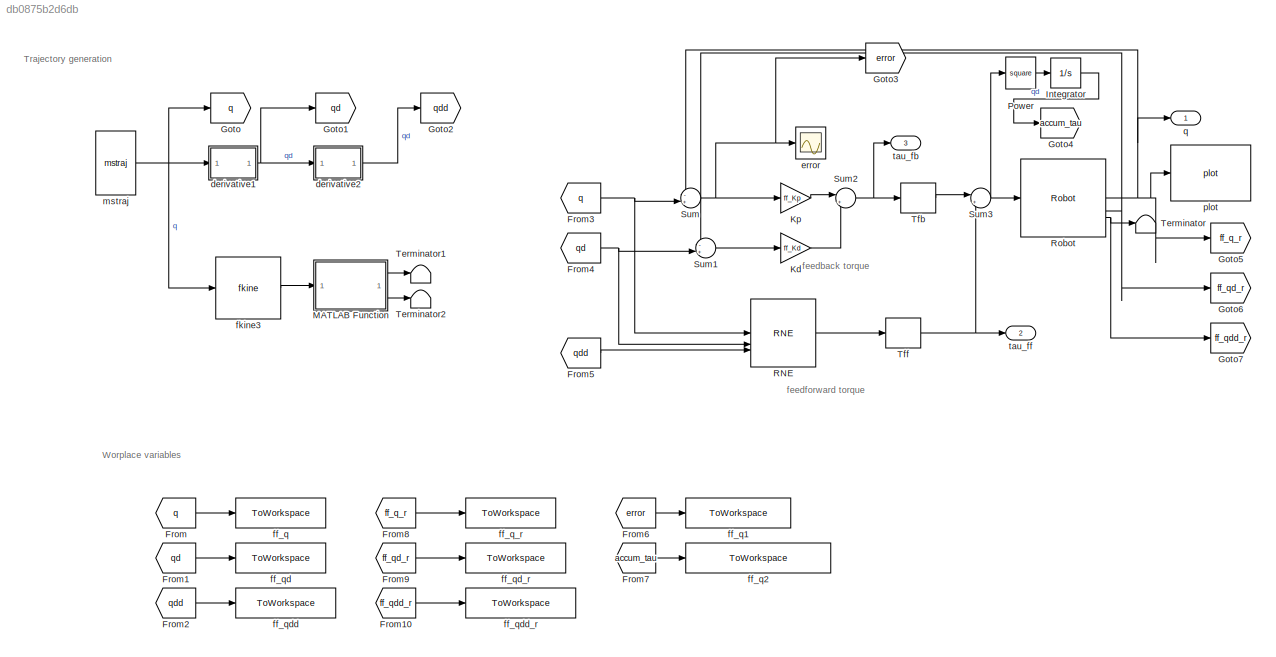
MODEL slx_db0875b2d6db
KIND model
CONFIG AbsTol = auto
CONFIG EnableMultiTasking = on
CONFIG FixedStep = auto
CONFIG MaxStep = auto
CONFIG MinStep = auto
CONFIG RelTol = 1e-3
CONFIG SampleTimeConstraint = Unconstrained
CONFIG SolverName = ode23t
CONFIG StartTime = 0.0
CONFIG StopTime = 99.7
BLOCK [From] From
  GotoTag = q
BLOCK [From] From1
  GotoTag = qd
BLOCK [From] From10
  GotoTag = ff_qdd_r
BLOCK [From] From2
  GotoTag = qdd
BLOCK [From] From3
  GotoTag = q
BLOCK [From] From4
  GotoTag = qd
BLOCK [From] From5
  GotoTag = qdd
BLOCK [From] From6
  GotoTag = error
BLOCK [From] From7
  GotoTag = accum_tau
BLOCK [From] From8
  GotoTag = ff_q_r
BLOCK [From] From9
  GotoTag = ff_qd_r
BLOCK [Goto] Goto
  GotoTag = q
BLOCK [Goto] Goto1
  GotoTag = qd
BLOCK [Goto] Goto2
  GotoTag = qdd
BLOCK [Goto] Goto3
  GotoTag = error
BLOCK [Goto] Goto4
  GotoTag = accum_tau
BLOCK [Goto] Goto5
  GotoTag = ff_q_r
BLOCK [Goto] Goto6
  GotoTag = ff_qd_r
BLOCK [Goto] Goto7
  GotoTag = ff_qdd_r
BLOCK [Integrator] Integrator
BLOCK [Gain] Kd
  Gain = ff_Kd
  OutDataTypeStr = Inherit: Same as input
  ParamDataTypeStr = Inherit: Same as input
  SaturateOnIntegerOverflow = on
BLOCK [Gain] Kp
  Gain = ff_Kp
  OutDataTypeStr = Inherit: Same as input
  ParamDataTypeStr = Inherit: Same as input
  SaturateOnIntegerOverflow = on
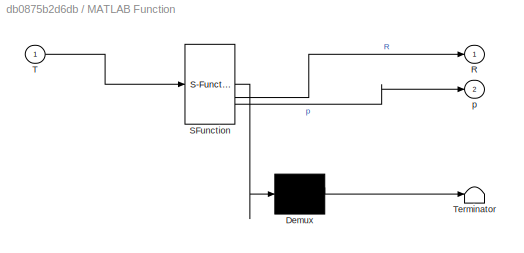
BLOCK [SubSystem] MATLAB Function
  ErrorFcn = Stateflow.Translate.translate
  LibrarySourceBlock = simulink/User-Defined\nFunctions/MATLAB Function
  PermitHierarchicalResolution = ExplicitOnly
  SFBlockType = MATLAB Function
  TreatAsAtomicUnit = on
BLOCK [Demux] MATLAB Function/ Demux 
  Outputs = 1
BLOCK [S-Function] MATLAB Function/ SFunction 
  EnableBusSupport = on
  FunctionName = sf_sfun
  PortCounts = [1 3]
  SFcnIsStateOwnerBlock = off
  SFunctionDeploymentMode = off
  Tag = Stateflow S-Function 2
BLOCK [Terminator] MATLAB Function/ Terminator 
BLOCK [Outport] MATLAB Function/R
BLOCK [Inport] MATLAB Function/T
BLOCK [Outport] MATLAB Function/p
  Port = 2
BLOCK [Math] Power
  Operator = square
BLOCK [Reference] RNE  REF=roblocks/Arm/RNE  (lib defined in mdl_2a292b13c81b, mdl_69400f8cfe22, +12 more)
  SourceBlock = roblocks/Arm/RNE
BLOCK [Reference] Robot  REF=roblocks/Arm/Robot  (lib defined in mdl_2a292b13c81b, mdl_69400f8cfe22, +12 more)
  SourceBlock = roblocks/Arm/Robot
BLOCK [Sum] Sum
  InputSameDT = on
  Inputs = -+|
  OutDataTypeStr = Inherit: Same as first input
  SaturateOnIntegerOverflow = on
BLOCK [Sum] Sum1
  InputSameDT = on
  Inputs = -+|
  OutDataTypeStr = Inherit: Same as first input
  SaturateOnIntegerOverflow = on
BLOCK [Sum] Sum2
  InputSameDT = on
  Inputs = |++
  OutDataTypeStr = Inherit: Same as first input
  SaturateOnIntegerOverflow = on
BLOCK [Sum] Sum3
  InputSameDT = on
  Inputs = |++
  OutDataTypeStr = Inherit: Same as first input
  SaturateOnIntegerOverflow = on
BLOCK [Terminator] Terminator
BLOCK [Terminator] Terminator1
BLOCK [Terminator] Terminator2
BLOCK [ZeroOrderHold] Tfb
  SampleTime = 0.002
BLOCK [ZeroOrderHold] Tff
  SampleTime = 0.05
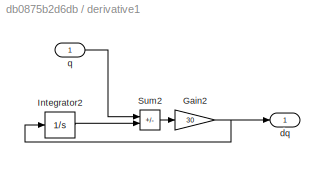
BLOCK [SubSystem] derivative1
BLOCK [Gain] derivative1/Gain2
  Gain = 30
BLOCK [Integrator] derivative1/Integrator2
BLOCK [Sum] derivative1/Sum2
  IconShape = rectangular
  Inputs = +-
BLOCK [Outport] derivative1/dq
BLOCK [Inport] derivative1/q
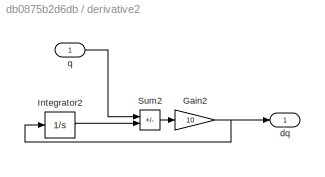
BLOCK [SubSystem] derivative2
BLOCK [Gain] derivative2/Gain2
  Gain = 10
BLOCK [Integrator] derivative2/Integrator2
BLOCK [Sum] derivative2/Sum2
  IconShape = rectangular
  Inputs = +-
BLOCK [Outport] derivative2/dq
BLOCK [Inport] derivative2/q
BLOCK [Scope] error
  Floating = off
  NumInputPorts = 1
  ScopeSpecificationString = Simulink.scopes.TimeScopeBlockCfg('CurrentConfiguration', extmgr.ConfigurationSet(extmgr.Configuration('Core','General UI',true),extmgr.Configuration('Core','Source UI',true),extmgr.Configuration('Sources','WiredSimulink',true),extmgr.Configuration('Visuals','Time Domain',true,'SerializedDisplays',{struct('MinYLimReal','-0.28455','MaxYLimReal','0.32961','YLabelReal','','MinYLimMag','0.00000','MaxY...<+1415ch>
BLOCK [ToWorkspace] ff_q
  FixptAsFi = on
  MaxDataPoints = inf
  SampleTime = -1
  SaveFormat = Structure With Time
  VariableName = ff_q
BLOCK [ToWorkspace] ff_q1
  FixptAsFi = on
  MaxDataPoints = inf
  SampleTime = -1
  SaveFormat = Structure With Time
  VariableName = ff_error
BLOCK [ToWorkspace] ff_q2
  FixptAsFi = on
  MaxDataPoints = inf
  SampleTime = -1
  SaveFormat = Structure With Time
  VariableName = ff_accum_tau
BLOCK [ToWorkspace] ff_q_r
  FixptAsFi = on
  MaxDataPoints = inf
  SampleTime = -1
  SaveFormat = Structure With Time
  VariableName = ff_q_r
BLOCK [ToWorkspace] ff_qd
  FixptAsFi = on
  MaxDataPoints = inf
  SampleTime = -1
  SaveFormat = Structure With Time
  VariableName = ff_qd
BLOCK [ToWorkspace] ff_qd_r
  FixptAsFi = on
  MaxDataPoints = inf
  SampleTime = -1
  SaveFormat = Structure With Time
  VariableName = ff_qd_r
BLOCK [ToWorkspace] ff_qdd
  FixptAsFi = on
  MaxDataPoints = inf
  SampleTime = -1
  SaveFormat = Structure With Time
  VariableName = ff_qdd
BLOCK [ToWorkspace] ff_qdd_r
  FixptAsFi = on
  MaxDataPoints = inf
  SampleTime = -1
  SaveFormat = Structure With Time
  VariableName = ff_qdd_r
BLOCK [Reference] fkine3  REF=roblocks/Arm/fkine  (lib defined in mdl_2a292b13c81b, mdl_69400f8cfe22, +12 more)
  SourceBlock = roblocks/Arm/fkine
BLOCK [Reference] mstraj  REF=roblocks/Toolbox/mstraj  (lib defined in mdl_2a292b13c81b, mdl_69400f8cfe22, +12 more)
  SourceBlock = roblocks/Toolbox/mstraj
  SourceType = Trajectory generator
BLOCK [Reference] plot  REF=roblocks/Arm/plot  (lib defined in mdl_2a292b13c81b, mdl_69400f8cfe22, +12 more)
  SourceBlock = roblocks/Arm/plot
BLOCK [Outport] q
BLOCK [Outport] tau_fb
  Port = 3
BLOCK [Outport] tau_ff
  Port = 2
ANNOTATION (root): feedforward torque
ANNOTATION (root): feedback torque
ANNOTATION (root): Trajectory generation
ANNOTATION (root): Worplace variables
LINE From10:1 -> ff_qdd_r:1
LINE From1:1 -> ff_qd:1
LINE From2:1 -> ff_qdd:1
NET From3:1 -> RNE:1, Sum:2
NET From4:1 -> RNE:2, Sum1:2
LINE From5:1 -> RNE:3
LINE From6:1 -> ff_q1:1
LINE From7:1 -> ff_q2:1
LINE From8:1 -> ff_q_r:1
LINE From9:1 -> ff_qd_r:1
LINE From:1 -> ff_q:1
LINE Integrator:1 -> Goto4:1
LINE Kd:1 -> Sum2:2
LINE Kp:1 -> Sum2:1
LINE MATLAB Function:1 -> Terminator1:1
LINE MATLAB Function:2 -> Terminator2:1
LINE Power:1 -> Integrator:1
LINE RNE:1 -> Tff:1
NET Robot:1 -> Goto5:1, Sum:1, plot:1, q:1
NET Robot:2 -> Goto6:1, Sum1:1
NET Robot:3 -> Goto7:1, Terminator:1
LINE Sum1:1 -> Kd:1
NET Sum2:1 -> Tfb:1, tau_fb:1
NET Sum3:1 -> Power:1, Robot:1
NET Sum:1 -> Goto3:1, Kp:1, error:1
LINE Tfb:1 -> Sum3:1
NET Tff:1 -> Sum3:2, tau_ff:1
NET derivative1/Gain2:1 -> derivative1/Integrator2:1, derivative1/dq:1
LINE derivative1/Integrator2:1 -> derivative1/Sum2:2
LINE derivative1/Sum2:1 -> derivative1/Gain2:1
LINE derivative1/q:1 -> derivative1/Sum2:1
NET derivative1:1 -> Goto1:1, derivative2:1
NET derivative2/Gain2:1 -> derivative2/Integrator2:1, derivative2/dq:1
LINE derivative2/Integrator2:1 -> derivative2/Sum2:2
LINE derivative2/Sum2:1 -> derivative2/Gain2:1
LINE derivative2/q:1 -> derivative2/Sum2:1
LINE derivative2:1 -> Goto2:1
LINE fkine3:1 -> MATLAB Function:1
NET mstraj:1 -> Goto:1, derivative1:1, fkine3:1
note: NET lines group one-source signal fan-out (src -> all destinations, sorted); 1:1 wires keep LINE
CHART MATLAB Function states=1 transitions=1
  STATE_LABEL 'eML_blk_kernel()'
  STATE_LABEL 'SCRIPT:\nfunction [R, p] = fcn(T)\n\np = T([1,2,3],4);\nR = T([1,2,3],[1,2,3]);\n'
CHART  states=0 transitions=0
